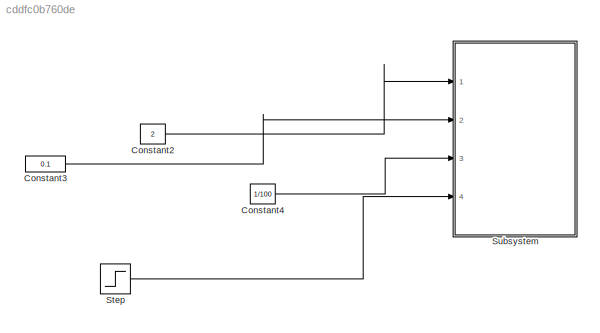
MODEL slx_cddfc0b760de
KIND model
CONFIG AbsTol = auto
CONFIG FixedStep = 0.001
CONFIG MaxStep = auto
CONFIG MinStep = auto
CONFIG RelTol = 1e-3
CONFIG SampleTimeConstraint = Unconstrained
CONFIG Solver = ode14x
CONFIG SolverMode = Auto
CONFIG SolverName = ode14x
CONFIG StartTime = 0.0
CONFIG StopTime = 0.5
BLOCK [Constant] Constant2
  Value = 2
BLOCK [Constant] Constant3
  Value = 0.1
BLOCK [Constant] Constant4
  Value = 1/100
BLOCK [Step] Step
  After = 6
  SampleTime = 0.001
  Time = 0.1
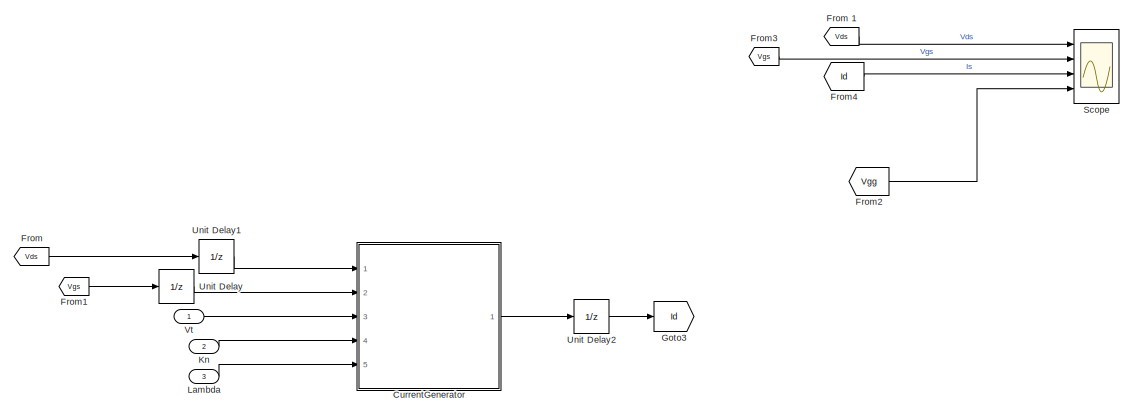
[diagram: Subsystem - part 1/2, full width, top band]
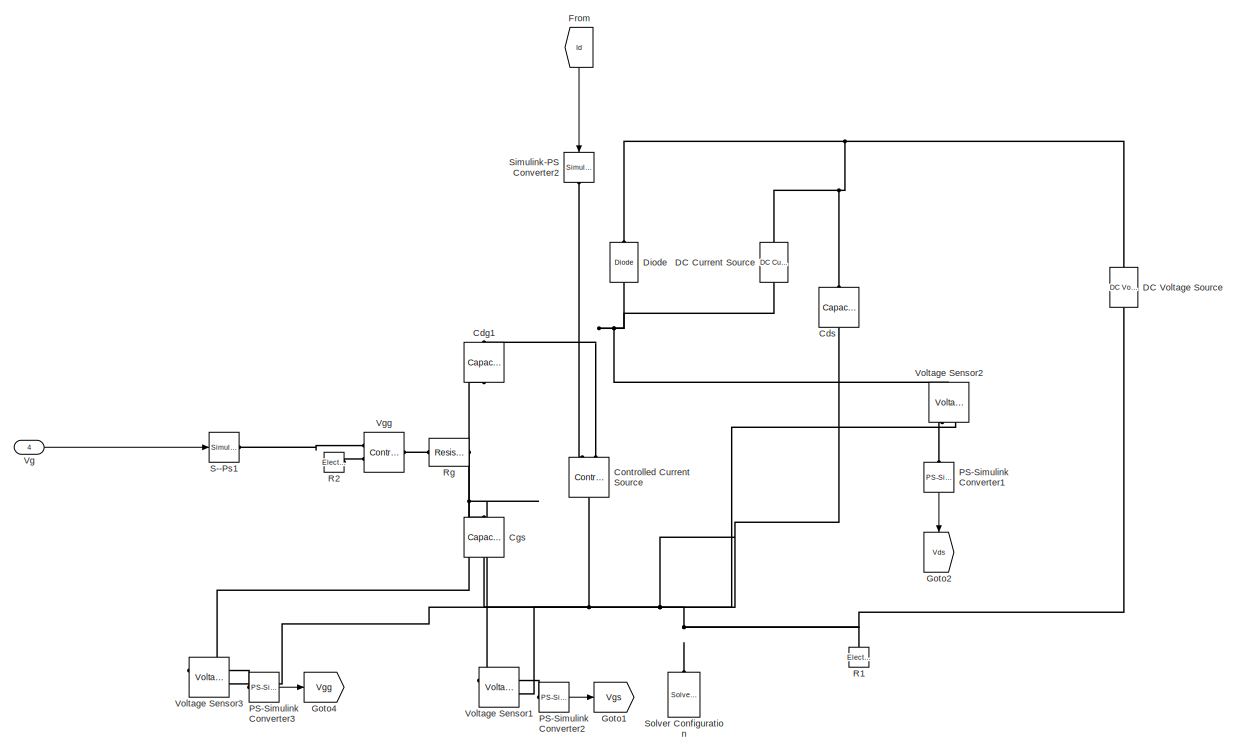
[diagram: Subsystem - part 2/2, full width, bottom band]
BLOCK [SubSystem] Subsystem
  Ports = [4]
  RequestExecContextInheritance = off
  Variant = off
BLOCK [Reference] Subsystem/Cdg1  REF=fl_lib/Electrical/Electrical Elements/Capacitor
  Ports = [0, 0, 0, 0, 0, 1, 1]
  SourceBlock = fl_lib/Electrical/Electrical Elements/Capacitor
  SourceType = Capacitor
BLOCK [Reference] Subsystem/Cds  REF=fl_lib/Electrical/Electrical Elements/Capacitor
  Ports = [0, 0, 0, 0, 0, 1, 1]
  SourceBlock = fl_lib/Electrical/Electrical Elements/Capacitor
  SourceType = Capacitor
BLOCK [Reference] Subsystem/Cgs  REF=fl_lib/Electrical/Electrical Elements/Capacitor
  Ports = [0, 0, 0, 0, 0, 1, 1]
  SourceBlock = fl_lib/Electrical/Electrical Elements/Capacitor
  SourceType = Capacitor
BLOCK [Reference] Subsystem/Controlled Current Source  REF=fl_lib/Electrical/Electrical Sources/Controlled Current
Source
  Ports = [0, 0, 0, 0, 0, 1, 2]
  SourceBlock = fl_lib/Electrical/Electrical Sources/Controlled Current\nSource
  SourceType = Controlled Current\nSource
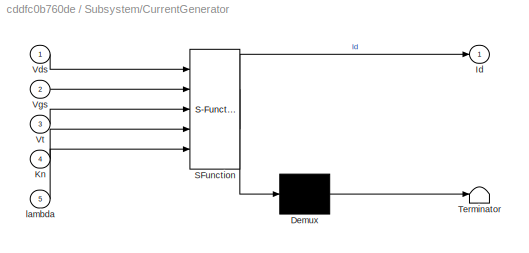
BLOCK [SubSystem] Subsystem/CurrentGenerator
  ErrorFcn = Stateflow.Translate.translate
  PermitHierarchicalResolution = ExplicitOnly
  Ports = [5, 1]
  RequestExecContextInheritance = off
  SFBlockType = MATLAB Function
  TreatAsAtomicUnit = on
  Variant = off
BLOCK [Demux] Subsystem/CurrentGenerator/ Demux 
  Outputs = 1
  Ports = [1, 1]
BLOCK [S-Function] Subsystem/CurrentGenerator/ SFunction 
  EnableBusSupport = on
  FunctionName = sf_sfun
  PortCounts = [5 2]
  Ports = [5, 2]
  SFunctionDeploymentMode = off
  Tag = Stateflow S-Function BuckConverterLoad 2
BLOCK [Terminator] Subsystem/CurrentGenerator/ Terminator 
BLOCK [Outport] Subsystem/CurrentGenerator/Id
  IconDisplay = Port number
BLOCK [Inport] Subsystem/CurrentGenerator/Kn
  IconDisplay = Port number
  Port = 4
BLOCK [Inport] Subsystem/CurrentGenerator/Vds
  IconDisplay = Port number
BLOCK [Inport] Subsystem/CurrentGenerator/Vgs
  IconDisplay = Port number
  Port = 2
BLOCK [Inport] Subsystem/CurrentGenerator/Vt
  IconDisplay = Port number
  Port = 3
BLOCK [Inport] Subsystem/CurrentGenerator/lambda
  IconDisplay = Port number
  Port = 5
BLOCK [Reference] Subsystem/DC Current Source  REF=fl_lib/Electrical/Electrical Sources/DC Current Source
  Ports = [0, 0, 0, 0, 0, 1, 1]
  SourceBlock = fl_lib/Electrical/Electrical Sources/DC Current Source
  SourceType = DC Current Source
BLOCK [Reference] Subsystem/DC Voltage Source  REF=fl_lib/Electrical/Electrical Sources/DC Voltage Source
  Ports = [0, 0, 0, 0, 0, 1, 1]
  SourceBlock = fl_lib/Electrical/Electrical Sources/DC Voltage Source
  SourceType = DC Voltage Source
BLOCK [Reference] Subsystem/Diode  REF=elec_lib/Semiconductor
Devices/Diode
  Ports = [0, 0, 0, 0, 0, 1, 1]
  SourceBlock = elec_lib/Semiconductor\nDevices/Diode
  SourceType = Diode
BLOCK [From] Subsystem/From
  GotoTag = Id
BLOCK [From] Subsystem/From 
  GotoTag = Vds
BLOCK [From] Subsystem/From 1
  GotoTag = Vds
BLOCK [From] Subsystem/From1
  GotoTag = Vgs
BLOCK [From] Subsystem/From2
  GotoTag = Vgg
BLOCK [From] Subsystem/From3
  GotoTag = Vgs
BLOCK [From] Subsystem/From4
  GotoTag = Id
BLOCK [Goto] Subsystem/Goto1
  GotoTag = Vgs
BLOCK [Goto] Subsystem/Goto2
  GotoTag = Vds
BLOCK [Goto] Subsystem/Goto3
  GotoTag = Id
BLOCK [Goto] Subsystem/Goto4
  GotoTag = Vgg
BLOCK [Inport] Subsystem/Kn
  IconDisplay = Port number
  Port = 2
BLOCK [Inport] Subsystem/Lambda
  IconDisplay = Port number
  Port = 3
BLOCK [Reference] Subsystem/PS-Simulink Converter1  REF=nesl_utility/PS-Simulink
Converter
  Ports = [0, 1, 0, 0, 0, 1]
  SourceBlock = nesl_utility/PS-Simulink\nConverter
  SourceType = PS-Simulink\nConverter
BLOCK [Reference] Subsystem/PS-Simulink Converter2  REF=nesl_utility/PS-Simulink
Converter
  Ports = [0, 1, 0, 0, 0, 1]
  SourceBlock = nesl_utility/PS-Simulink\nConverter
  SourceType = PS-Simulink\nConverter
BLOCK [Reference] Subsystem/PS-Simulink Converter3  REF=nesl_utility/PS-Simulink
Converter
  Ports = [0, 1, 0, 0, 0, 1]
  SourceBlock = nesl_utility/PS-Simulink\nConverter
  SourceType = PS-Simulink\nConverter
BLOCK [Reference] Subsystem/R1  REF=fl_lib/Electrical/Electrical Elements/Electrical Reference
  Ports = [0, 0, 0, 0, 0, 1]
  SourceBlock = fl_lib/Electrical/Electrical Elements/Electrical Reference
  SourceType = Electrical Reference
BLOCK [Reference] Subsystem/R2  REF=fl_lib/Electrical/Electrical Elements/Electrical Reference
  Ports = [0, 0, 0, 0, 0, 1]
  SourceBlock = fl_lib/Electrical/Electrical Elements/Electrical Reference
  SourceType = Electrical Reference
BLOCK [Reference] Subsystem/Rg  REF=fl_lib/Electrical/Electrical Elements/Resistor
  Ports = [0, 0, 0, 0, 0, 1, 1]
  SourceBlock = fl_lib/Electrical/Electrical Elements/Resistor
  SourceType = Resistor
BLOCK [Reference] Subsystem/S--Ps1  REF=nesl_utility/Simulink-PS
Converter
  Ports = [1, 0, 0, 0, 0, 0, 1]
  SourceBlock = nesl_utility/Simulink-PS\nConverter
  SourceType = Simulink-PS\nConverter
BLOCK [Scope] Subsystem/Scope
  NumInputPorts = 4
  Ports = [4]
  ScopeSpecificationString = Simulink.scopes.TimeScopeBlockCfg('CurrentConfiguration', extmgr.ConfigurationSet(extmgr.Configuration('Core','General UI',true),extmgr.Configuration('Core','Source UI',true),extmgr.Configuration('Sources','WiredSimulink',true),extmgr.Configuration('Visuals','Time Domain',true,'SerializedDisplays',{struct('MinYLimReal','-451562178.82656','MaxYLimReal','462697126.30589','YLabelReal','','MinYLimMag'...<+4877ch>
BLOCK [Reference] Subsystem/Simulink-PS Converter2  REF=nesl_utility/Simulink-PS
Converter
  Ports = [1, 0, 0, 0, 0, 0, 1]
  SourceBlock = nesl_utility/Simulink-PS\nConverter
  SourceType = Simulink-PS\nConverter
BLOCK [Reference] Subsystem/Solver Configuration  REF=nesl_utility/Solver
Configuration
  Ports = [0, 0, 0, 0, 0, 0, 1]
  SourceBlock = nesl_utility/Solver\nConfiguration
  SourceType = Solver\nConfiguration
BLOCK [UnitDelay] Subsystem/Unit Delay
  InputProcessing = Elements as channels (sample based)
  SampleTime = -1
BLOCK [UnitDelay] Subsystem/Unit Delay1
  InputProcessing = Elements as channels (sample based)
  SampleTime = -1
BLOCK [UnitDelay] Subsystem/Unit Delay2
  InputProcessing = Elements as channels (sample based)
  SampleTime = -1
BLOCK [Inport] Subsystem/Vg
  IconDisplay = Port number
  Port = 4
BLOCK [Reference] Subsystem/Vgg  REF=fl_lib/Electrical/Electrical Sources/Controlled Voltage
Source
  Ports = [0, 0, 0, 0, 0, 1, 2]
  SourceBlock = fl_lib/Electrical/Electrical Sources/Controlled Voltage\nSource
  SourceType = Controlled Voltage\nSource
BLOCK [Reference] Subsystem/Voltage Sensor1  REF=fl_lib/Electrical/Electrical Sensors/Voltage Sensor
  Ports = [0, 0, 0, 0, 0, 1, 2]
  SourceBlock = fl_lib/Electrical/Electrical Sensors/Voltage Sensor
  SourceType = Voltage Sensor
BLOCK [Reference] Subsystem/Voltage Sensor2  REF=fl_lib/Electrical/Electrical Sensors/Voltage Sensor
  Ports = [0, 0, 0, 0, 0, 1, 2]
  SourceBlock = fl_lib/Electrical/Electrical Sensors/Voltage Sensor
  SourceType = Voltage Sensor
BLOCK [Reference] Subsystem/Voltage Sensor3  REF=fl_lib/Electrical/Electrical Sensors/Voltage Sensor
  Ports = [0, 0, 0, 0, 0, 1, 2]
  SourceBlock = fl_lib/Electrical/Electrical Sensors/Voltage Sensor
  SourceType = Voltage Sensor
BLOCK [Inport] Subsystem/Vt
  IconDisplay = Port number
LINE Constant2:1 -> Subsystem:1
LINE Constant3:1 -> Subsystem:2
LINE Constant4:1 -> Subsystem:3
LINE Step:1 -> Subsystem:4
LINE Subsystem/CurrentGenerator:1 -> Subsystem/Unit Delay2:1
LINE Subsystem/From 1:1 -> Subsystem/Scope:1
LINE Subsystem/From :1 -> Subsystem/Unit Delay1:1
LINE Subsystem/From1:1 -> Subsystem/Unit Delay:1
LINE Subsystem/From2:1 -> Subsystem/Scope:4
LINE Subsystem/From3:1 -> Subsystem/Scope:2
LINE Subsystem/From4:1 -> Subsystem/Scope:3
LINE Subsystem/From:1 -> Subsystem/Simulink-PS Converter2:1
LINE Subsystem/Kn:1 -> Subsystem/CurrentGenerator:4
LINE Subsystem/Lambda:1 -> Subsystem/CurrentGenerator:5
LINE Subsystem/PS-Simulink Converter1:1 -> Subsystem/Goto2:1
LINE Subsystem/PS-Simulink Converter2:1 -> Subsystem/Goto1:1
LINE Subsystem/PS-Simulink Converter3:1 -> Subsystem/Goto4:1
LINE Subsystem/Unit Delay1:1 -> Subsystem/CurrentGenerator:1
LINE Subsystem/Unit Delay2:1 -> Subsystem/Goto3:1
LINE Subsystem/Unit Delay:1 -> Subsystem/CurrentGenerator:2
LINE Subsystem/Vg:1 -> Subsystem/S--Ps1:1
LINE Subsystem/Vt:1 -> Subsystem/CurrentGenerator:3
PNET net1: Subsystem/Cdg1:LConn1 -- Subsystem/Controlled Current Source:RConn2 -- Subsystem/DC Current Source:LConn1 -- Subsystem/Diode:LConn1 -- Subsystem/Voltage Sensor2:LConn1
PNET net2: Subsystem/Cdg1:RConn1 -- Subsystem/Cgs:LConn1 -- Subsystem/Rg:RConn1 -- Subsystem/Voltage Sensor1:LConn1
PNET net3: Subsystem/Cds:LConn1 -- Subsystem/DC Current Source:RConn1 -- Subsystem/DC Voltage Source:LConn1 -- Subsystem/Diode:RConn1
PNET net4: Subsystem/Cds:RConn1 -- Subsystem/Cgs:RConn1 -- Subsystem/Controlled Current Source:LConn1 -- Subsystem/DC Voltage Source:RConn1 -- Subsystem/R1:LConn1 -- Subsystem/Solver Configuration:RConn1 -- Subsystem/Voltage Sensor1:RConn2 -- Subsystem/Voltage Sensor2:RConn2 -- Subsystem/Voltage Sensor3:RConn2
PLINE Subsystem/Controlled Current Source:RConn1 -- Subsystem/Simulink-PS Converter2:RConn1
PLINE Subsystem/PS-Simulink Converter1:LConn1 -- Subsystem/Voltage Sensor2:RConn1
PLINE Subsystem/PS-Simulink Converter2:LConn1 -- Subsystem/Voltage Sensor1:RConn1
PLINE Subsystem/PS-Simulink Converter3:LConn1 -- Subsystem/Voltage Sensor3:RConn1
PLINE Subsystem/R2:LConn1 -- Subsystem/Vgg:RConn2
PNET net5: Subsystem/Rg:LConn1 -- Subsystem/Vgg:LConn1 -- Subsystem/Voltage Sensor3:LConn1
PLINE Subsystem/S--Ps1:RConn1 -- Subsystem/Vgg:RConn1
note: PNET lines group multi-terminal physical nets as a canonical sorted terminal list (undirected conserving connections); 2-terminal nets keep the pairwise PLINE form
CHART Subsystem/CurrentGenerator states=1 transitions=1
  STATE_LABEL 'eML_blk_kernel()'
  STATE_LABEL 'SCRIPT:\nfunction Id  = fcn(Vds,Vgs,Vt,Kn,lambda)\n%#codegen\n% Vds: Drain-to-source voltage in V\n% Vgs: Gate-to-source voltage in V\n% Vt: Threshold Voltage in V\n% Kn: Devices parameter in A/V^2\n% Lambda: Early voltage in V^-1\n\n% Id: Drain-to-Source Current\n% Switch : determines the on-off state of switch\nCurrent=0;\n%SwitchStat=0;\nGSVt= Vgs-Vt; % it determines transistor on or off\n\nOnStat=Vds-Vgs+Vt;...<+446ch>'
